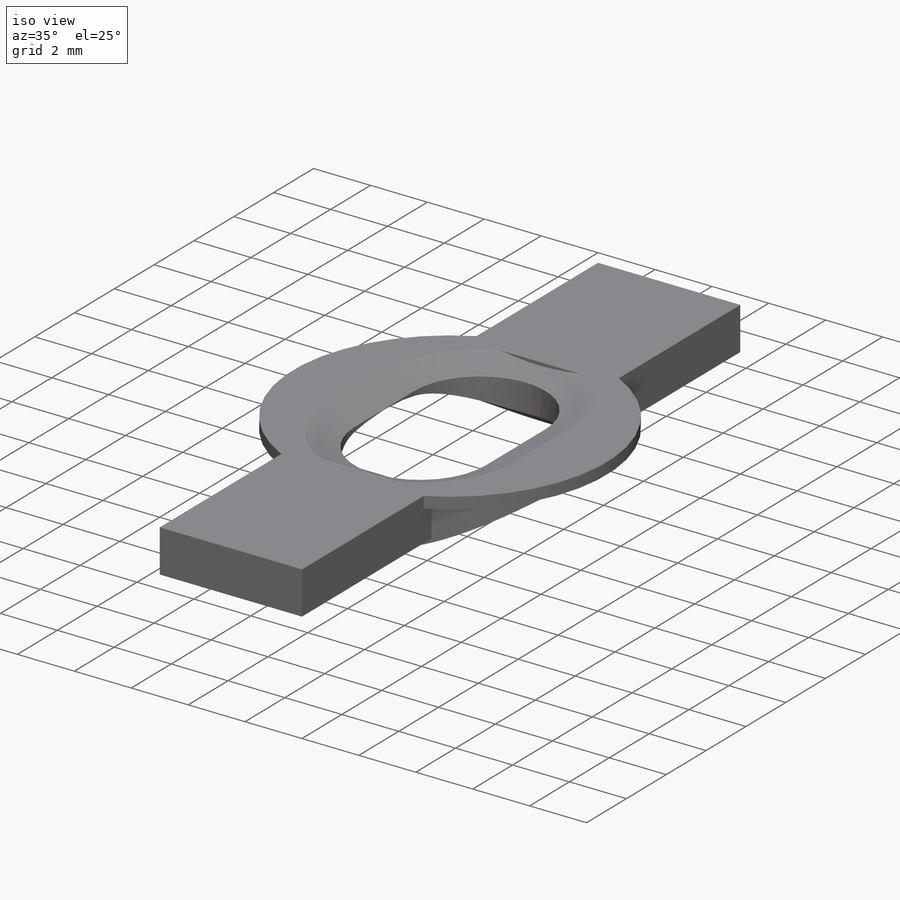
[diagram: iso view]
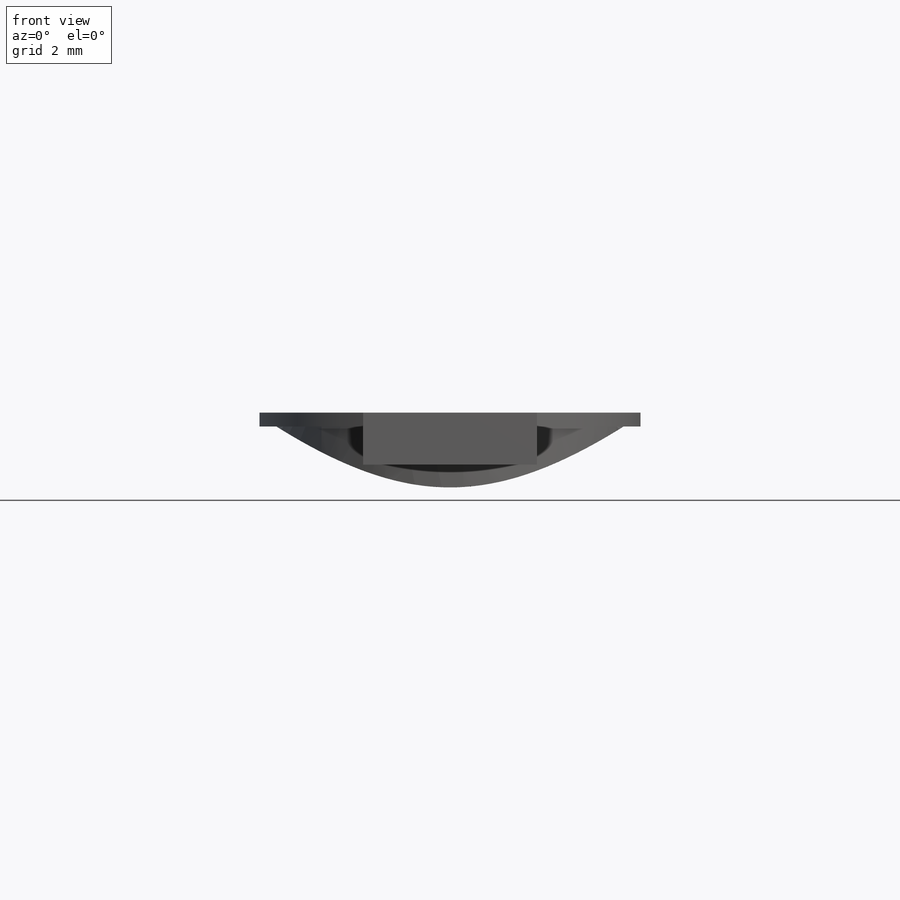
[diagram: front view]
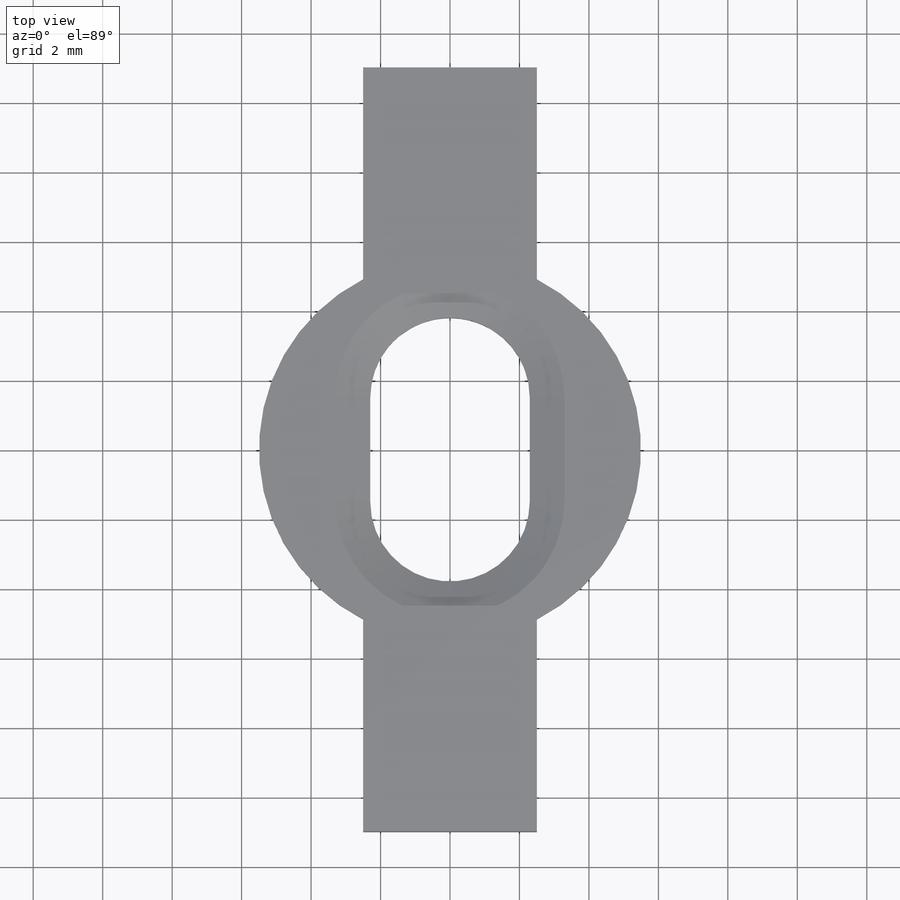
[diagram: top view]
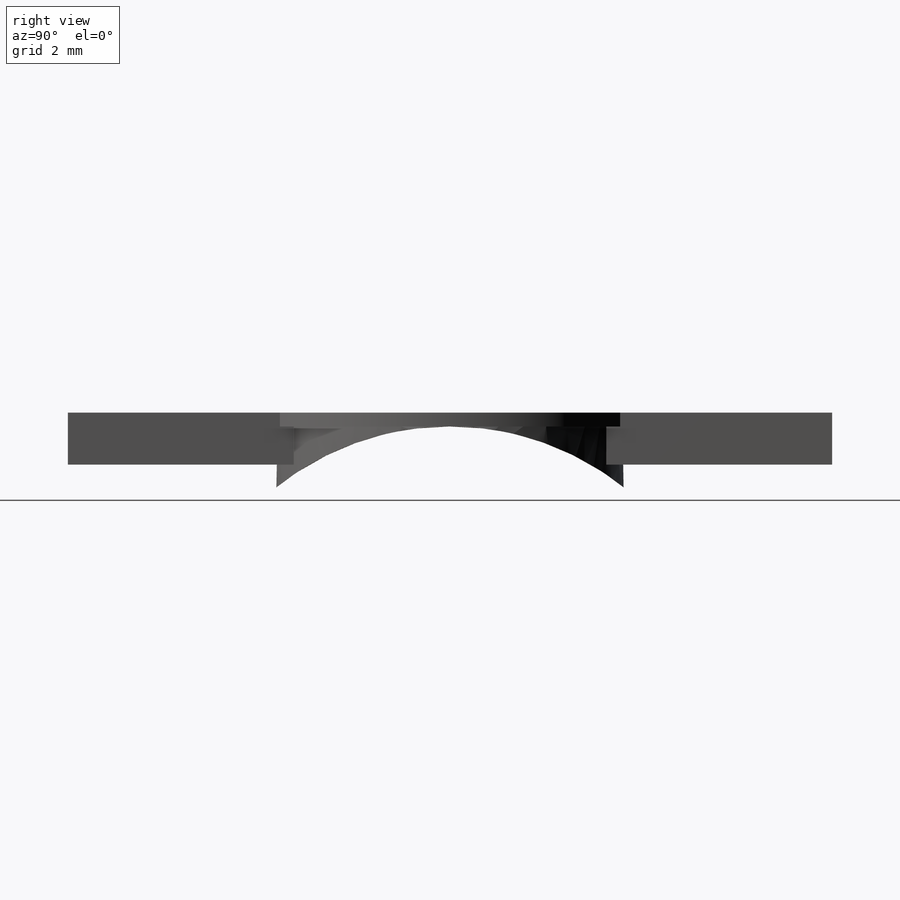
[diagram: right view]
SOLIDWORKS PART (.sldprt)
format: sldprt  version: not decoded by parser v0  size: 225,792 bytes
history: native  units: mm
features: sketch x6, extrude x3, cut_extrude x2, material x1, chamfer x1 (+11 scaffold rows collapsed)
feature tree (24):
  scaffold x11  (default folders/planes/origin — collapsed)
  material  "Material <not specified>"
  sketch  "Sketch1"  dims[D1=5.5mm]
  extrude  "Boss-Extrude1"  Depth=5mm
  sketch  "Sketch2"  dims[D1=~5.879206mm]
  extrude  "Boss-Extrude2"  Depth=0.4mm
  sketch  "Sketch4"  dims[D1=1.5mm D2=1.5mm D3=0.0mm]
  cut_extrude  "Cut-Extrude1"  [1 undecoded]
  sketch  "Sketch5"  dims[D1=6.0mm]
  cut_extrude  "Cut-Extrude2"  [1 undecoded]
  sketch  "Sketch6"  dims[D1=~4.917098mm]
  chamfer  "Chamfer4"  Distance=1mm Angle=21deg
  sketch  "Sketch7"  dims[D1=6.5mm]
  extrude  "Boss-Extrude4"  Depth=1.5mm
decode coverage: 10 of 12 modeling features carry decoded parameters
note: ~ marks probable driven/reference dimensions
note: 2 parameter values undecoded
note: suppression state not decoded; provenance and decode notes live in map.json
